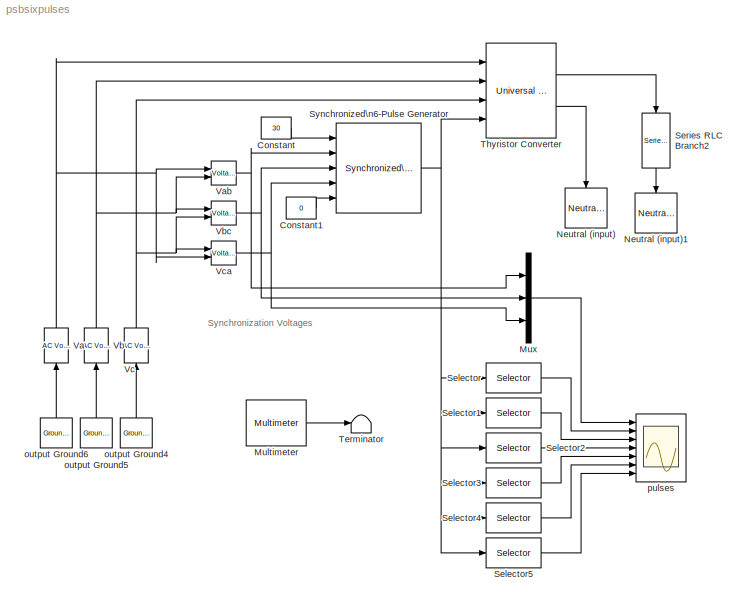
MODEL psbsixpulses
KIND model
CONFIG InitFcn = powericon('psbinitsys',bdroot);
BLOCK [Constant] Constant
  Value = 30
BLOCK [Constant] Constant1
  Value = 0
BLOCK [Reference] Multimeter  REF=powerlib2/Measurements/Multimeter
  AxesSetting = [0,0.1,-100,100]
  Display = 1
  Gain = [-1 -1 -1 -1 -1 -1 1]
  L = 15
  OutputType = Magnitude
  PSBOutputType = 1
  PSBequivalent = 0
  PhasorSimulation = off
  Ports = [0, 1]
  SavedBlockNames = -11
  SourceBlock = powerlib2/Measurements/Multimeter
  SourceType = MultimeterPSB
  Tag = PoWeRsYsTeMmEaSuReMeNt
  sel = [1 2 3 4 5 6 9]
  yselected = {'Usw1: Thyristor Converter','Usw2: Thyristor Converter','Usw3: Thyristor Converter','Usw4: Thyristor Converter','Usw5: Thyristor Converter','Usw6: Thyristor Converter','Udc: Thyristor Converter'};
BLOCK [Mux] Mux
  DisplayOption = bar
  Inputs = 3
  Ports = [3, 1]
BLOCK [Reference] Neutral (input)  REF=powerlib2/Connectors/Neutral (input)
  Ports = [1]
  SourceBlock = powerlib2/Connectors/Neutral (input)
  SourceType = Neutral
  Tag = PoWeRsYsTeMbLoCk
  no = 1
BLOCK [Reference] Neutral (input)1  REF=powerlib2/Connectors/Neutral (input)
  Ports = [1]
  SourceBlock = powerlib2/Connectors/Neutral (input)
  SourceType = Neutral
  Tag = PoWeRsYsTeMbLoCk
  no = 1
BLOCK [Selector] Selector
  InputPortWidth = 6
  Ports = [1, 1]
BLOCK [Selector] Selector1
  Elements = 2
  InputPortWidth = 6
  Ports = [1, 1]
BLOCK [Selector] Selector2
  Elements = 3
  InputPortWidth = 6
  Ports = [1, 1]
BLOCK [Selector] Selector3
  Elements = 4
  InputPortWidth = 6
  Ports = [1, 1]
BLOCK [Selector] Selector4
  Elements = 5
  InputPortWidth = 6
  Ports = [1, 1]
BLOCK [Selector] Selector5
  Elements = 6
  InputPortWidth = 6
  Ports = [1, 1]
BLOCK [Reference] Series RLC Branch2  REF=powerlib2/Elements/Series RLC Branch
  PSBOutputType = 1
  Ports = [1, 1]
  SourceBlock = powerlib2/Elements/Series RLC Branch
  SourceType = Series RLC Branch
  Tag = PoWeRsYsTeMbLoCk
  a = 2
  b = 0
  c = inf
  mesure = None
BLOCK [Reference] Synchronized\n6-Pulse Generator  REF=powerlib_extras/Control \nBlocks/Synchronized\n6-Pulse Generator
  Double_Pulse = on
  Ports = [5, 1]
  SourceBlock = powerlib_extras/Control \nBlocks/Synchronized\n6-Pulse Generator
  SourceType = Synchronized 6-pulse generator
  freq = 60
  pwidth = 10
BLOCK [Terminator] Terminator
BLOCK [Reference] Thyristor Converter  REF=powerlib2/Power\nElectronics/Universal Bridge
  Lon = 0
  PSBOutputType = 111
  Ports = [4, 2]
  Ron = 1e-3
  SourceBlock = powerlib2/Power\nElectronics/Universal Bridge
  SourceType = Universal Bridge
  Tag = PoWeRsYsTeMbLoCk
  VFs = [  0.8  0.8  ]
  Vf = 0
  arms = 3
  cf = 1e-6
  confi = ABC as input terminals
  device = Thyristors
  gtoparameters = [ 10e-6 , 20e-6 ]
  igbtparameters = [ 1e-6 , 2e-6 ]
  injcc = 500
  mesure = All voltages and currents
BLOCK [Reference] Va  REF=powerlib2/Electrical\nSources/AC Voltage Source
  A = 200
  F = 60
  P = 0
  PSBOutputType = 1
  Ports = [1, 1]
  SourceBlock = powerlib2/Electrical\nSources/AC Voltage Source
  SourceType = AC Voltage Source
  Tag = PoWeRsYsTeMbLoCk
  mesure = None
  stime = 0
BLOCK [Reference] Vab  REF=powerlib2/Measurements/Voltage Measurement
  OutputType = Magnitude
  PSBOutputType = 0
  PSBequivalent = 0
  PhasorSimulation = off
  Ports = [2, 1]
  SourceBlock = powerlib2/Measurements/Voltage Measurement
  SourceType = Voltage Measurement
  Tag = PoWeRsYsTeMmEaSuReMeNt
BLOCK [Reference] Vb  REF=powerlib2/Electrical\nSources/AC Voltage Source
  A = 200
  F = 60
  P = -120
  PSBOutputType = 1
  Ports = [1, 1]
  SourceBlock = powerlib2/Electrical\nSources/AC Voltage Source
  SourceType = AC Voltage Source
  Tag = PoWeRsYsTeMbLoCk
  mesure = None
  stime = 0
BLOCK [Reference] Vbc  REF=powerlib2/Measurements/Voltage Measurement
  OutputType = Magnitude
  PSBOutputType = 0
  PSBequivalent = 0
  PhasorSimulation = off
  Ports = [2, 1]
  SourceBlock = powerlib2/Measurements/Voltage Measurement
  SourceType = Voltage Measurement
  Tag = PoWeRsYsTeMmEaSuReMeNt
BLOCK [Reference] Vc  REF=powerlib2/Electrical\nSources/AC Voltage Source
  A = 200
  F = 60
  P = 120
  PSBOutputType = 1
  Ports = [1, 1]
  SourceBlock = powerlib2/Electrical\nSources/AC Voltage Source
  SourceType = AC Voltage Source
  Tag = PoWeRsYsTeMbLoCk
  mesure = None
  stime = 0
BLOCK [Reference] Vca  REF=powerlib2/Measurements/Voltage Measurement
  OutputType = Magnitude
  PSBOutputType = 0
  PSBequivalent = 0
  PhasorSimulation = off
  Ports = [2, 1]
  SourceBlock = powerlib2/Measurements/Voltage Measurement
  SourceType = Voltage Measurement
  Tag = PoWeRsYsTeMmEaSuReMeNt
BLOCK [Reference] output Ground4  REF=powerlib2/Connectors/Ground (output)
  PSBOutputType = 1
  Ports = [0, 1]
  SourceBlock = powerlib2/Connectors/Ground (output)
  SourceType = Ground
  Tag = PoWeRsYsTeMbLoCk
BLOCK [Reference] output Ground5  REF=powerlib2/Connectors/Ground (output)
  PSBOutputType = 1
  Ports = [0, 1]
  SourceBlock = powerlib2/Connectors/Ground (output)
  SourceType = Ground
  Tag = PoWeRsYsTeMbLoCk
BLOCK [Reference] output Ground6  REF=powerlib2/Connectors/Ground (output)
  PSBOutputType = 1
  Ports = [0, 1]
  SourceBlock = powerlib2/Connectors/Ground (output)
  SourceType = Ground
  Tag = PoWeRsYsTeMbLoCk
BLOCK [Scope] pulses
  DataFormat = StructureWithTime
  LimitDataPoints = off
  NumInputPorts = 7
  Ports = [7]
  SampleInput = on
  SampleTime = 1/60/512
  SaveName = VI_scope
  SaveToWorkspace = on
  TimeRange = 0.035
  YMax = 400~1~1~1~1~1~1
  YMin = -400~-1~-1~-1~0~0~0
  ZoomMode = xonly
ANNOTATION (root): Synchronization Voltages
LINE Constant1:1 -> Synchronized\n6-Pulse Generator:5
LINE Constant:1 -> Synchronized\n6-Pulse Generator:1
LINE Multimeter:1 -> Terminator:1
LINE Mux:1 -> pulses:1
LINE Selector1:1 -> pulses:3
LINE Selector2:1 -> pulses:4
LINE Selector3:1 -> pulses:5
LINE Selector4:1 -> pulses:6
LINE Selector5:1 -> pulses:7
LINE Selector:1 -> pulses:2
LINE Series RLC Branch2:1 -> Neutral (input)1:1
NET Synchronized\n6-Pulse Generator:1 -> Selector1:1, Selector2:1, Selector3:1, Selector4:1, Selector5:1, Selector:1, Thyristor Converter:4
LINE Thyristor Converter:1 -> Series RLC Branch2:1
LINE Thyristor Converter:2 -> Neutral (input):1
NET Va:1 -> Thyristor Converter:1, Vab:1, Vca:2
NET Vab:1 -> Mux:1, Synchronized\n6-Pulse Generator:2
NET Vb:1 -> Thyristor Converter:2, Vab:2, Vbc:1
NET Vbc:1 -> Mux:2, Synchronized\n6-Pulse Generator:3
NET Vc:1 -> Thyristor Converter:3, Vbc:2, Vca:1
NET Vca:1 -> Mux:3, Synchronized\n6-Pulse Generator:4
LINE output Ground4:1 -> Vc:1
LINE output Ground5:1 -> Vb:1
LINE output Ground6:1 -> Va:1
note: NET lines group one-source signal fan-out (src -> all destinations, sorted); 1:1 wires keep LINE
